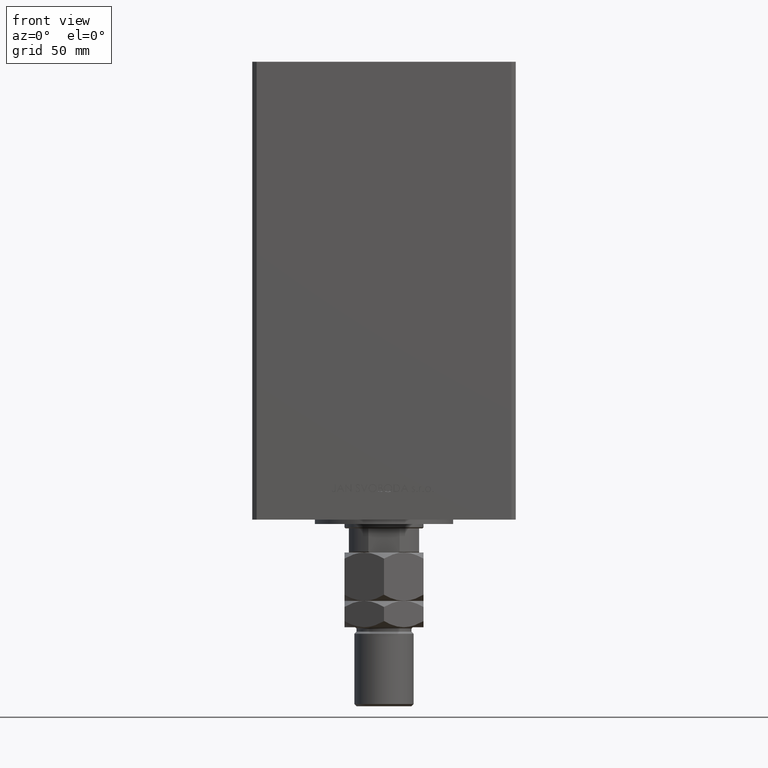
[diagram: clean part render]
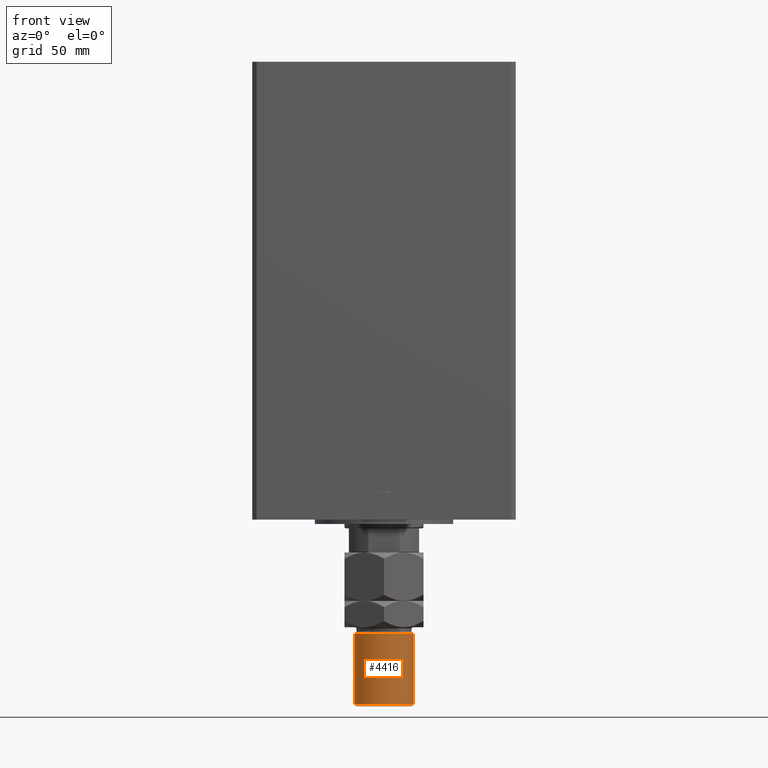
[diagram: same view with one face highlighted and labeled with its STEP entity id]
A machine part, front view. The second image highlights one B-rep face of the part: STEP entity #4416.
In plain terms, the highlighted cylindrical surface (edge-blend (fillet) strip) has radius 13.5 mm, axis along (0, -0, 1).
Its self-contained STEP definition (entity closure, byte-faithful):
#1749 = CARTESIAN_POINT ( 'NONE',  ( -13.50000000000000000, 0.000000000000000000, 37.00000000000000000 ) ) ;
#4416 = ADVANCED_FACE ( 'NONE', ( #31882 ), #5404, .T. ) ;
#4918 = LINE ( 'NONE', #20096, #32878 ) ;
#5404 = CYLINDRICAL_SURFACE ( 'NONE', #30043, 13.50000000000000000 ) ;
#7003 = CARTESIAN_POINT ( 'NONE',  ( 13.50000000000000000, 1.653273178848926867E-15, 70.00000000000000000 ) ) ;
#7531 = EDGE_CURVE ( 'NONE', #23581, #37136, #39080, .T. ) ;
#8087 = CARTESIAN_POINT ( 'NONE',  ( 13.50000000000000000, 1.653273178848926867E-15, 68.99999999999998579 ) ) ;
#10812 = CIRCLE ( 'NONE', #19827, 13.50000000000000000 ) ;
#11634 = EDGE_LOOP ( 'NONE', ( #43258, #17630, #38585, #29379 ) ) ;
#13744 = CIRCLE ( 'NONE', #42445, 13.50000000000000000 ) ;
#16143 = DIRECTION ( 'NONE',  ( 1.000000000000000000, 0.000000000000000000, 0.000000000000000000 ) ) ;
#16391 = CARTESIAN_POINT ( 'NONE',  ( 0.000000000000000000, 0.000000000000000000, 37.00000000000000000 ) ) ;
#17630 = ORIENTED_EDGE ( 'NONE', *, *, #23674, .T. ) ;
#19827 = AXIS2_PLACEMENT_3D ( 'NONE', #45237, #44987, #21879 ) ;
#19993 = DIRECTION ( 'NONE',  ( -0.000000000000000000, -0.000000000000000000, 1.000000000000000000 ) ) ;
#20096 = CARTESIAN_POINT ( 'NONE',  ( -13.50000000000000000, 0.000000000000000000, 70.00000000000000000 ) ) ;
#21636 = EDGE_CURVE ( 'NONE', #32341, #46699, #4918, .T. ) ;
#21879 = DIRECTION ( 'NONE',  ( 1.000000000000000000, 0.000000000000000000, 0.000000000000000000 ) ) ;
#22677 = DIRECTION ( 'NONE',  ( -0.000000000000000000, -0.000000000000000000, -1.000000000000000000 ) ) ;
#23581 = VERTEX_POINT ( 'NONE', #8087 ) ;
#23674 = EDGE_CURVE ( 'NONE', #23581, #32341, #10812, .T. ) ;
#24689 = CARTESIAN_POINT ( 'NONE',  ( 0.000000000000000000, 0.000000000000000000, 70.00000000000000000 ) ) ;
#27333 = CARTESIAN_POINT ( 'NONE',  ( 13.50000000000000000, 1.653273178848926867E-15, 37.00000000000000000 ) ) ;
#28026 = DIRECTION ( 'NONE',  ( -1.000000000000000000, 0.000000000000000000, 0.000000000000000000 ) ) ;
#28538 = VECTOR ( 'NONE', #22677, 1000.000000000000000 ) ;
#29379 = ORIENTED_EDGE ( 'NONE', *, *, #38326, .T. ) ;
#30043 = AXIS2_PLACEMENT_3D ( 'NONE', #24689, #43684, #28026 ) ;
#31882 = FACE_OUTER_BOUND ( 'NONE', #11634, .T. ) ;
#32341 = VERTEX_POINT ( 'NONE', #36720 ) ;
#32878 = VECTOR ( 'NONE', #50221, 1000.000000000000000 ) ;
#36720 = CARTESIAN_POINT ( 'NONE',  ( -13.50000000000000000, 0.000000000000000000, 68.99999999999998579 ) ) ;
#37136 = VERTEX_POINT ( 'NONE', #27333 ) ;
#38326 = EDGE_CURVE ( 'NONE', #46699, #37136, #13744, .T. ) ;
#38585 = ORIENTED_EDGE ( 'NONE', *, *, #21636, .T. ) ;
#39080 = LINE ( 'NONE', #7003, #28538 ) ;
#42445 = AXIS2_PLACEMENT_3D ( 'NONE', #16391, #19993, #16143 ) ;
#43258 = ORIENTED_EDGE ( 'NONE', *, *, #7531, .F. ) ;
#43684 = DIRECTION ( 'NONE',  ( -0.000000000000000000, -0.000000000000000000, -1.000000000000000000 ) ) ;
#44987 = DIRECTION ( 'NONE',  ( 0.000000000000000000, 0.000000000000000000, -1.000000000000000000 ) ) ;
#45237 = CARTESIAN_POINT ( 'NONE',  ( 0.000000000000000000, 0.000000000000000000, 68.99999999999998579 ) ) ;
#46699 = VERTEX_POINT ( 'NONE', #1749 ) ;
#50221 = DIRECTION ( 'NONE',  ( -0.000000000000000000, -0.000000000000000000, -1.000000000000000000 ) ) ;